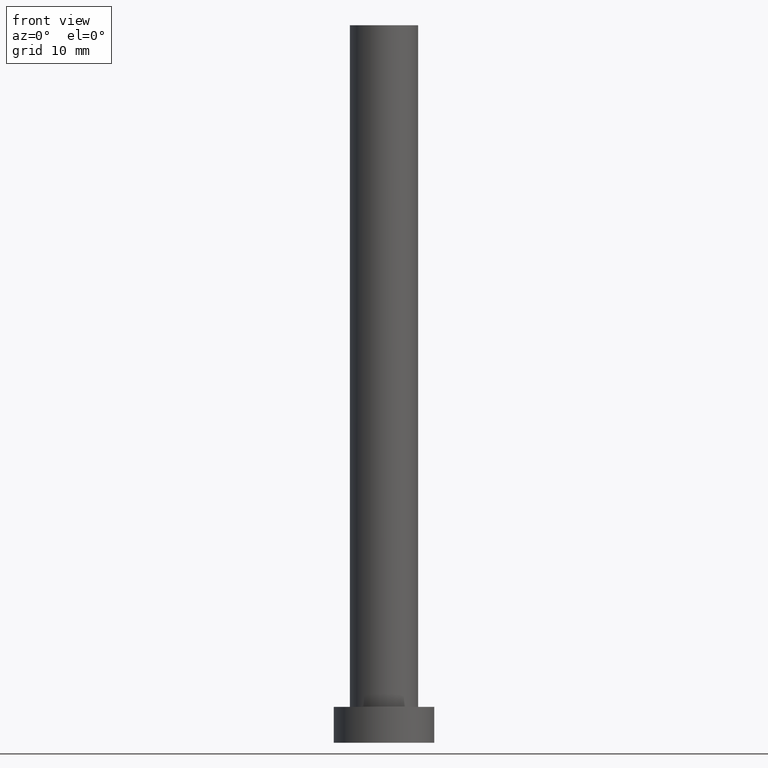
[diagram: clean part render]
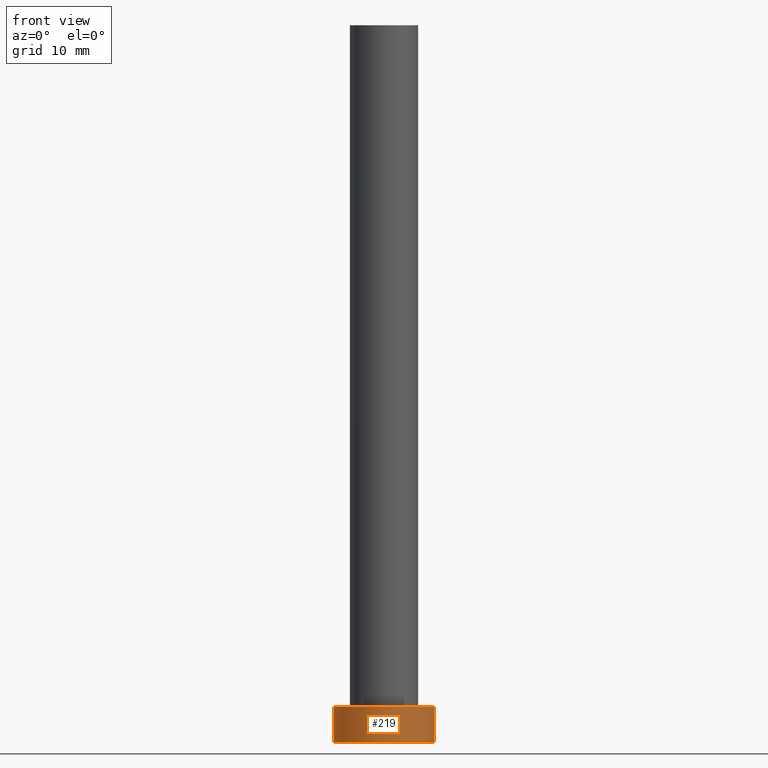
[diagram: same view with one face highlighted and labeled with its STEP entity id]
A machine part, front view. The second image highlights one B-rep face of the part: STEP entity #219.
In plain terms, the highlighted cylindrical surface (partial cylindrical patch) has radius 7 mm, axis along (-0, -0, -1).
Its self-contained STEP definition (entity closure, byte-faithful):
#4 = VERTEX_POINT ( 'NONE', #152 ) ;
#8 = EDGE_CURVE ( 'NONE', #106, #131, #111, .T. ) ;
#13 = DIRECTION ( 'NONE',  ( -0.000000000000000000, -0.000000000000000000, -1.000000000000000000 ) ) ;
#30 = VECTOR ( 'NONE', #84, 1000.000000000000000 ) ;
#40 = CARTESIAN_POINT ( 'NONE',  ( 0.000000000000000000, 0.000000000000000000, 0.000000000000000000 ) ) ;
#47 = FACE_OUTER_BOUND ( 'NONE', #149, .T. ) ;
#61 = CARTESIAN_POINT ( 'NONE',  ( -7.000000000000000000, 0.000000000000000000, 5.000000000000000000 ) ) ;
#63 = AXIS2_PLACEMENT_3D ( 'NONE', #193, #255, #158 ) ;
#75 = ORIENTED_EDGE ( 'NONE', *, *, #225, .T. ) ;
#84 = DIRECTION ( 'NONE',  ( -0.000000000000000000, -0.000000000000000000, -1.000000000000000000 ) ) ;
#86 = VECTOR ( 'NONE', #13, 1000.000000000000000 ) ;
#95 = DIRECTION ( 'NONE',  ( 1.000000000000000000, 0.000000000000000000, 0.000000000000000000 ) ) ;
#97 = CARTESIAN_POINT ( 'NONE',  ( 7.000000000000000000, 8.572527594031473190E-16, 0.000000000000000000 ) ) ;
#106 = VERTEX_POINT ( 'NONE', #168 ) ;
#111 = LINE ( 'NONE', #184, #86 ) ;
#123 = AXIS2_PLACEMENT_3D ( 'NONE', #194, #211, #212 ) ;
#131 = VERTEX_POINT ( 'NONE', #97 ) ;
#136 = VERTEX_POINT ( 'NONE', #61 ) ;
#149 = EDGE_LOOP ( 'NONE', ( #218, #223, #75, #181 ) ) ;
#152 = CARTESIAN_POINT ( 'NONE',  ( -7.000000000000000000, 0.000000000000000000, 0.000000000000000000 ) ) ;
#156 = CARTESIAN_POINT ( 'NONE',  ( -7.000000000000000000, 0.000000000000000000, 5.000000000000000000 ) ) ;
#157 = AXIS2_PLACEMENT_3D ( 'NONE', #40, #176, #95 ) ;
#158 = DIRECTION ( 'NONE',  ( -1.000000000000000000, 0.000000000000000000, 0.000000000000000000 ) ) ;
#161 = CIRCLE ( 'NONE', #123, 7.000000000000000000 ) ;
#168 = CARTESIAN_POINT ( 'NONE',  ( 7.000000000000000000, 8.572527594031473190E-16, 5.000000000000000000 ) ) ;
#176 = DIRECTION ( 'NONE',  ( 0.000000000000000000, 0.000000000000000000, 1.000000000000000000 ) ) ;
#181 = ORIENTED_EDGE ( 'NONE', *, *, #198, .T. ) ;
#184 = CARTESIAN_POINT ( 'NONE',  ( 7.000000000000000000, 8.572527594031473190E-16, 5.000000000000000000 ) ) ;
#188 = EDGE_CURVE ( 'NONE', #136, #106, #161, .T. ) ;
#193 = CARTESIAN_POINT ( 'NONE',  ( 0.000000000000000000, 0.000000000000000000, 5.000000000000000000 ) ) ;
#194 = CARTESIAN_POINT ( 'NONE',  ( 0.000000000000000000, 0.000000000000000000, 5.000000000000000000 ) ) ;
#198 = EDGE_CURVE ( 'NONE', #4, #131, #232, .T. ) ;
#208 = CYLINDRICAL_SURFACE ( 'NONE', #63, 7.000000000000000000 ) ;
#211 = DIRECTION ( 'NONE',  ( 0.000000000000000000, 0.000000000000000000, 1.000000000000000000 ) ) ;
#212 = DIRECTION ( 'NONE',  ( 1.000000000000000000, 0.000000000000000000, 0.000000000000000000 ) ) ;
#218 = ORIENTED_EDGE ( 'NONE', *, *, #8, .F. ) ;
#219 = ADVANCED_FACE ( 'NONE', ( #47 ), #208, .T. ) ;
#223 = ORIENTED_EDGE ( 'NONE', *, *, #188, .F. ) ;
#225 = EDGE_CURVE ( 'NONE', #136, #4, #235, .T. ) ;
#232 = CIRCLE ( 'NONE', #157, 7.000000000000000000 ) ;
#235 = LINE ( 'NONE', #156, #30 ) ;
#255 = DIRECTION ( 'NONE',  ( -0.000000000000000000, -0.000000000000000000, -1.000000000000000000 ) ) ;